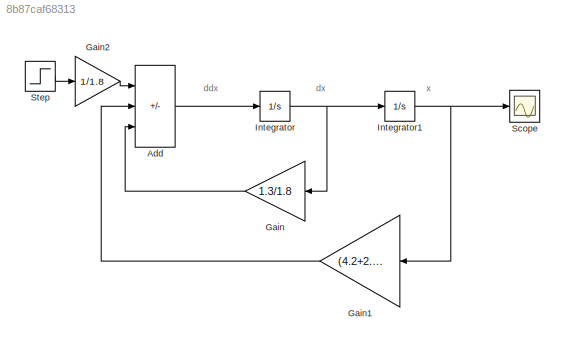
MODEL slx_8b87caf68313
KIND model
CONFIG AbsTol = auto
CONFIG EnableMultiTasking = off
CONFIG FixedStep = auto
CONFIG MaxStep = auto
CONFIG MinStep = auto
CONFIG RelTol = 1e-6
CONFIG SampleTimeConstraint = Unconstrained
CONFIG SolverName = VariableStepAuto
CONFIG StartTime = 0.0
CONFIG StopTime = 25
BLOCK [Sum] Add
  IconShape = rectangular
  Inputs = +--
  Ports = [3, 1]
BLOCK [Gain] Gain
  Gain = 1.3/1.8
  NameLocation = top
BLOCK [Gain] Gain1
  Gain = (4.2+2.1)/1.8
  NameLocation = top
BLOCK [Gain] Gain2
  Gain = 1/1.8
BLOCK [Integrator] Integrator
  Ports = [1, 1]
BLOCK [Integrator] Integrator1
  Ports = [1, 1]
BLOCK [Scope] Scope
  Floating = off
  NumInputPorts = 1
  Ports = [1]
  ScopeSpecificationString = Simulink.scopes.TimeScopeBlockCfg('CurrentConfiguration', extmgr.ConfigurationSet(extmgr.Configuration('Core','General UI',true),extmgr.Configuration('Core','Source UI',true),extmgr.Configuration('Sources','WiredSimulink',true),extmgr.Configuration('Visuals','Time Domain',true,'SerializedDisplays',{struct('MinYLimReal','-0.06107','MaxYLimReal','0.54963','YLabelReal','','MinYLimMag','0.00000','MaxY...<+1331ch>
BLOCK [Step] Step
  After = 2
  SampleTime = 0
  Time = 0
ANNOTATION (root): ddx
ANNOTATION (root): dx
ANNOTATION (root): x
LINE Add:1 -> Integrator:1
LINE Gain1:1 -> Add:2
LINE Gain2:1 -> Add:1
LINE Gain:1 -> Add:3
NET Integrator1:1 -> Gain1:1, Scope:1
NET Integrator:1 -> Gain:1, Integrator1:1
LINE Step:1 -> Gain2:1
note: NET lines group one-source signal fan-out (src -> all destinations, sorted); 1:1 wires keep LINE
